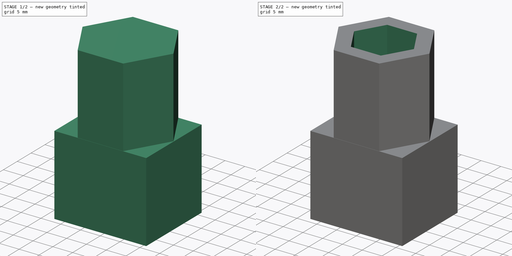
[diagram: build sequence overview — one tinted view per stage of 2, left to right]
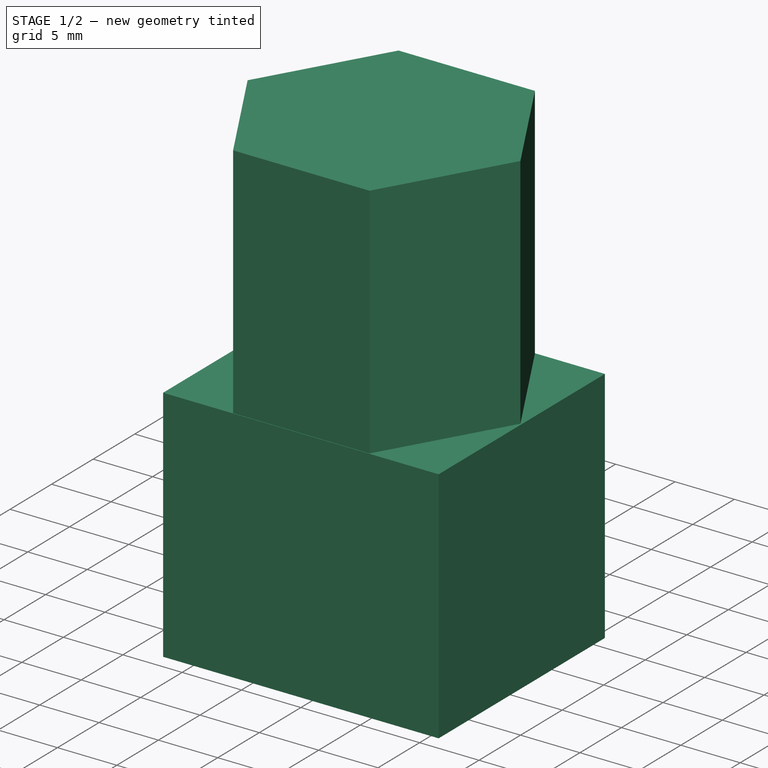
[diagram: stage 1 of 2 — iso view after this stage's code; geometry added in this stage tinted green]
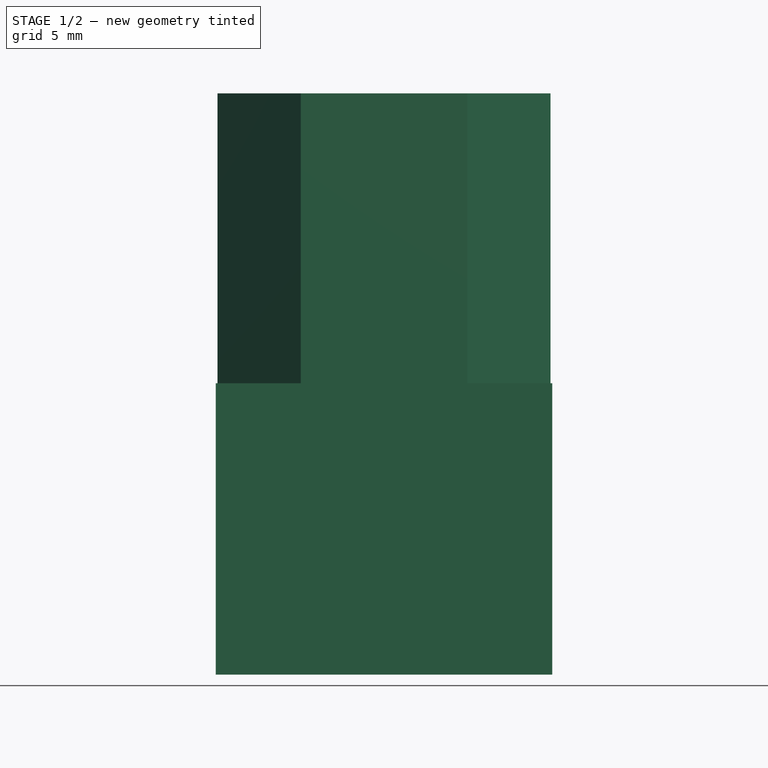
[diagram: stage 1 of 2 — front view after this stage's code; geometry added in this stage tinted green]
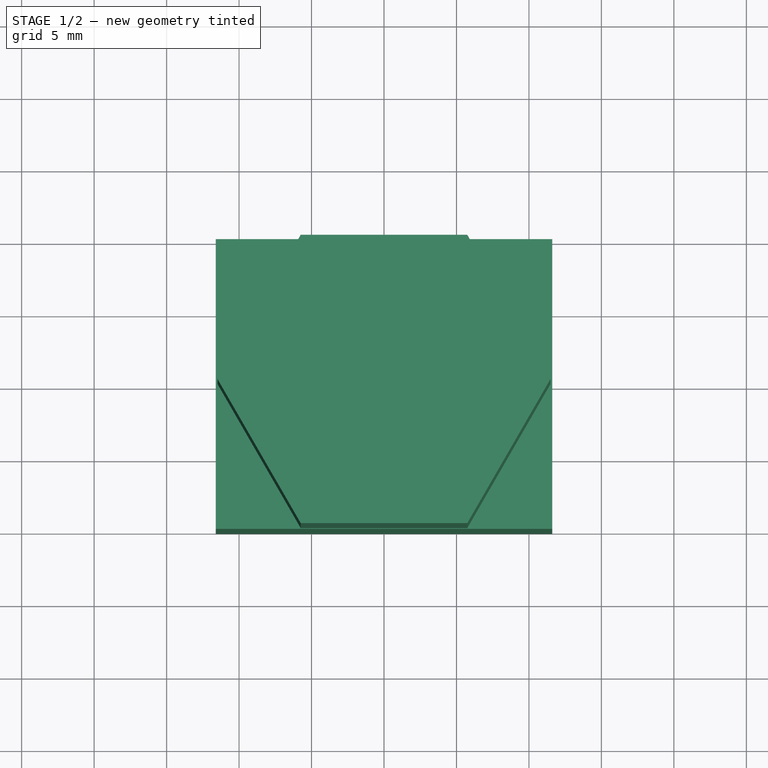
[diagram: stage 1 of 2 — top view after this stage's code; geometry added in this stage tinted green]
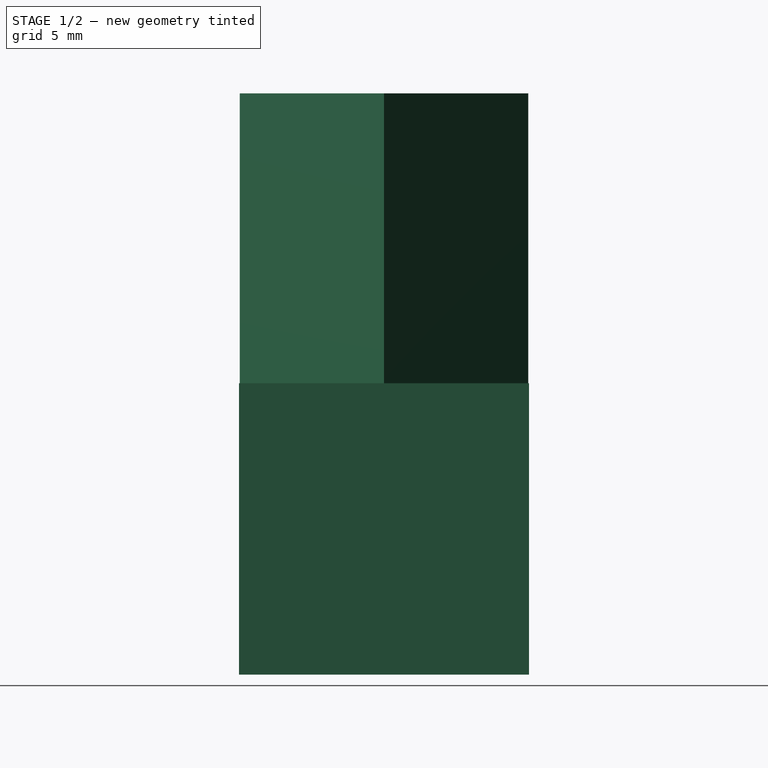
[diagram: stage 1 of 2 — right view after this stage's code; geometry added in this stage tinted green]
FCSTD DOCUMENT  (FreeCAD 1.1R38991 (Git))
Label: Ключ на 13
License: All rights reserved
LicenseURL: https://en.wikipedia.org/wiki/All_rights_reserved
objects: Sketcher::SketchObject×3, PartDesign::Pad×2, PartDesign::Plane×1, PartDesign::Pocket×1, PartDesign::Body×1
note: 17 computed .brp shape members not serialized (recipe doc carries the construction recipe); baked Part::Feature solids carry a one-line shape summary decoded from their .brp

FEATURE [Sketcher::SketchObject] Sketch
  ArcFitTolerance = 1e-06
  AttachmentSupport = -> [XZ_Plane001]
  FullyConstrained = true
  MakeInternals = false
  MapMode = 5
  Placement = pos=(0,0,0) rot=(1,0,0;1.5708rad)
  sketch-geometry (11):
    g0: LineSegment StartX=-11.6047 StartY=10.05 StartZ=0 EndX=-11.6047 EndY=-10.05 EndZ=0
    g1: LineSegment StartX=-11.6047 StartY=-10.05 StartZ=0 EndX=11.6047 EndY=-10.05 EndZ=0
    g2: LineSegment StartX=11.6047 StartY=-10.05 StartZ=0 EndX=11.6047 EndY=10.05 EndZ=0
    g3: LineSegment StartX=11.6047 StartY=10.05 StartZ=0 EndX=-11.6047 EndY=10.05 EndZ=0
    g4: LineSegment [constr] StartX=-5.80237 StartY=10.05 StartZ=0 EndX=-11.6047 EndY=1.8e-15 EndZ=0
    g5: LineSegment [constr] StartX=-11.6047 StartY=1.8e-15 StartZ=0 EndX=-5.80237 EndY=-10.05 EndZ=0
    g6: LineSegment [constr] StartX=-5.80237 StartY=-10.05 StartZ=0 EndX=5.80237 EndY=-10.05 EndZ=0
    g7: LineSegment [constr] StartX=5.80237 StartY=-10.05 StartZ=0 EndX=11.6047 EndY=0 EndZ=0
    g8: LineSegment [constr] StartX=11.6047 StartY=-6e-16 StartZ=0 EndX=5.80237 EndY=10.05 EndZ=0
    g9: LineSegment [constr] StartX=5.80237 StartY=10.05 StartZ=0 EndX=-5.80237 EndY=10.05 EndZ=0
    g10: Circle [constr] CenterX=0 CenterY=0 CenterZ=0 NormalX=0 NormalY=0 NormalZ=1 AngleXU=0 Radius=11.6047
  constraints (28):
    c: Coincident(g0,g1)
    c: Coincident(g1,g2)
    c: Coincident(g2,g3)
    c: Coincident(g3,g0)
    c: Vertical(g0)
    c: Vertical(g2)
    c: Horizontal(g1)
    c: Horizontal(g3)
    c: Coincident(g4,g5)
    c: Coincident(g5,g6)
    c: Coincident(g6,g7)
    c: Coincident(g7,g8)
    c: Coincident(g8,g9)
    c: Coincident(g9,g4)
    c: Equal(g4, g5-g9) x5
    c: PointOnObject(g4,g10)
    c: PointOnObject(g5,g10)
    c: PointOnObject(g6,g10)
    c: PointOnObject(g7,g10)
    c: PointOnObject(g8,g10)
    c: PointOnObject(g9,g10)
    c: Coincident(g10,g-1)
    c: PointOnObject(g9,g3)
    c: PointOnObject(g8,g3)
    c: PointOnObject(g4,g0)
    c: PointOnObject(g7,g2)
    c: PointOnObject(g6,g1)
    c: DistanceY(g5,g4) = 20.1
FEATURE [PartDesign::Pad] Pad
  Direction = (0,-1,2e-16)
  Length = 20
  Length2 = 10
  Placement = pos=(0,0,0) rot=(1,0,0;1.5708rad)
  Profile = -> Sketch
  ReferenceAxis = -> Sketch [N_Axis]
  Refine = true
  Suppressed = false
  Type = 0
FEATURE [PartDesign::Plane] DatumPlane
  AttachmentSupport = -> [Pad]
  Length = 60
  MapMode = 5
  Placement = pos=(0,2.2e-15,10.05) rot=(0,0,1;3.14159rad)
  ResizeMode = 0
  Width = 60
FEATURE [Sketcher::SketchObject] Sketch001
  ArcFitTolerance = 1e-06
  AttachmentSupport = -> [DatumPlane]
  ExternalGeometry = -> [Pad]
  FullyConstrained = true
  MakeInternals = false
  MapMode = 5
  Placement = pos=(0,2.2e-15,10.05) rot=(0,0,1;3.14159rad)
  sketch-geometry (7):
    g0: LineSegment StartX=-5.74464 StartY=19.95 StartZ=0 EndX=-11.4893 EndY=10 EndZ=0
    g1: LineSegment StartX=-11.4893 StartY=10 StartZ=0 EndX=-5.74464 EndY=0.05 EndZ=0
    g2: LineSegment StartX=-5.74464 StartY=0.05 StartZ=0 EndX=5.74464 EndY=0.05 EndZ=0
    g3: LineSegment StartX=5.74464 StartY=0.05 StartZ=0 EndX=11.4893 EndY=10 EndZ=0
    g4: LineSegment StartX=11.4893 StartY=10 StartZ=0 EndX=5.74464 EndY=19.95 EndZ=0
    g5: LineSegment StartX=5.74464 StartY=19.95 StartZ=0 EndX=-5.74464 EndY=19.95 EndZ=0
    g6: Circle [constr] CenterX=-7e-16 CenterY=10 CenterZ=0 NormalX=0 NormalY=0 NormalZ=1 AngleXU=0 Radius=11.4893
  constraints (16):
    c: Coincident(g0,g1)
    c: Coincident(g1,g2)
    c: Coincident(g2,g3)
    c: Coincident(g3,g4)
    c: Coincident(g4,g5)
    c: Coincident(g5,g0)
    c: Equal(g0, g1-g5) x5
    c: PointOnObject(g0,g6)
    c: PointOnObject(g1,g6)
    c: PointOnObject(g2,g6)
    c: PointOnObject(g3,g6)
    c: PointOnObject(g4,g6)
    c: PointOnObject(g5,g6)
    c: Horizontal(g5)
    c: Distance(g2,g5) = 19.9
    c: Symmetric(g-3,g-4,g6)
FEATURE [PartDesign::Pad] Pad001
  BaseFeature = -> Pad
  Direction = (0,0,1)
  Length = 20
  Length2 = 10
  Placement = pos=(0,0,0) rot=(1,0,0;1.5708rad)
  Profile = -> Sketch001
  ReferenceAxis = -> Sketch001 [N_Axis]
  Refine = true
  Suppressed = false
  Type = 0
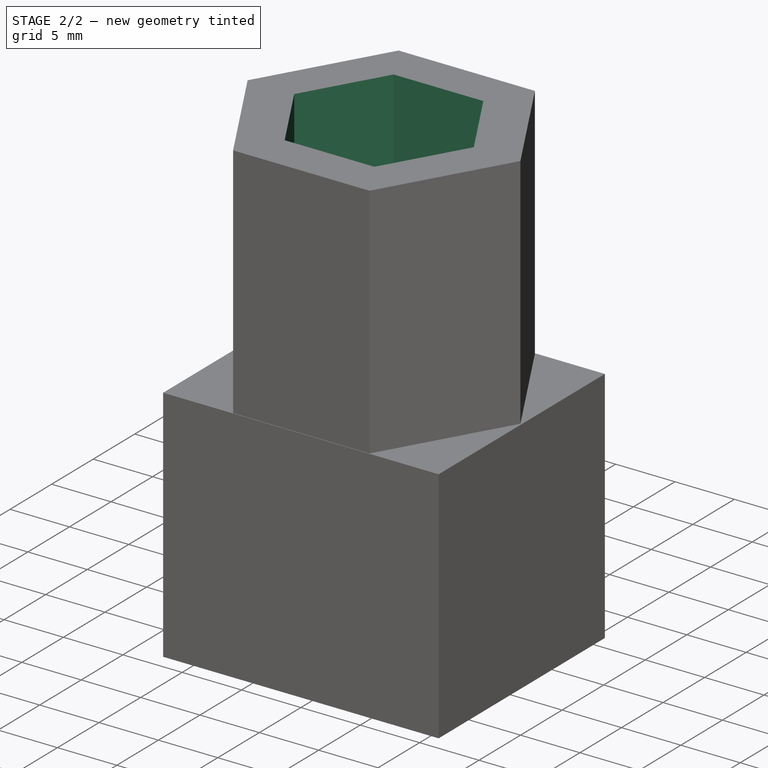
[diagram: stage 2 of 2 — iso view after this stage's code; geometry added in this stage tinted green]
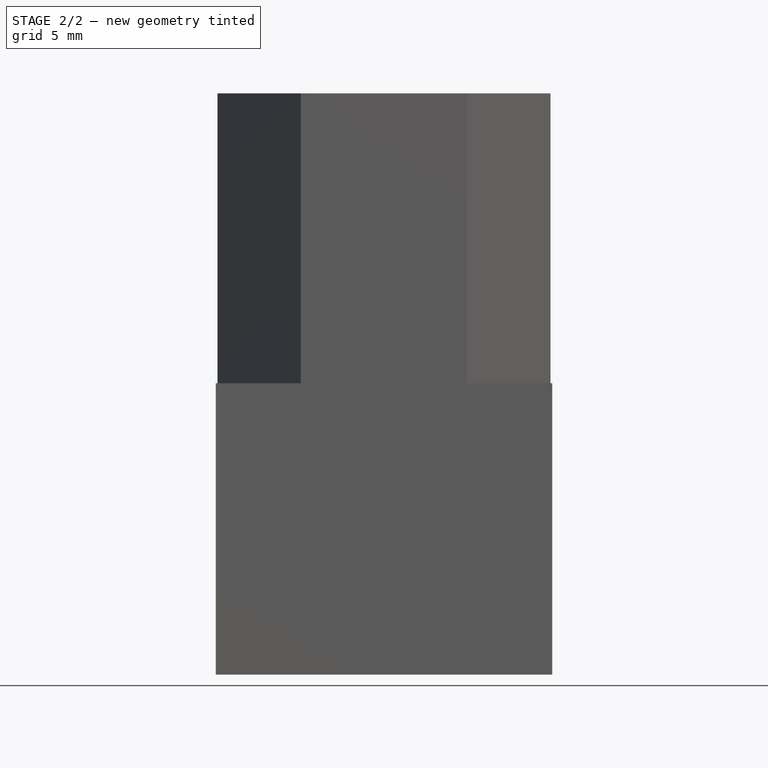
[diagram: stage 2 of 2 — front view after this stage's code; geometry added in this stage tinted green]
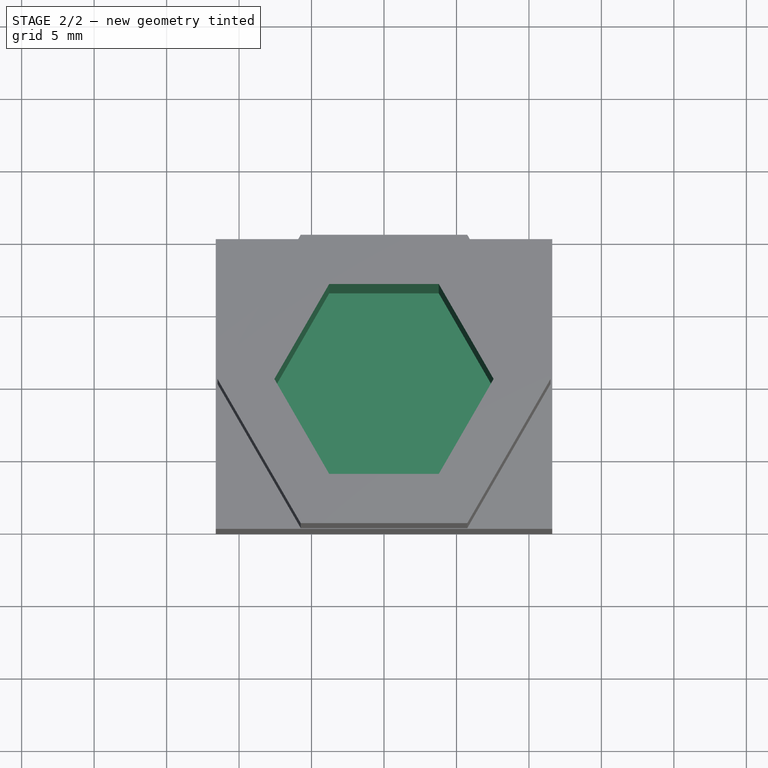
[diagram: stage 2 of 2 — top view after this stage's code; geometry added in this stage tinted green]
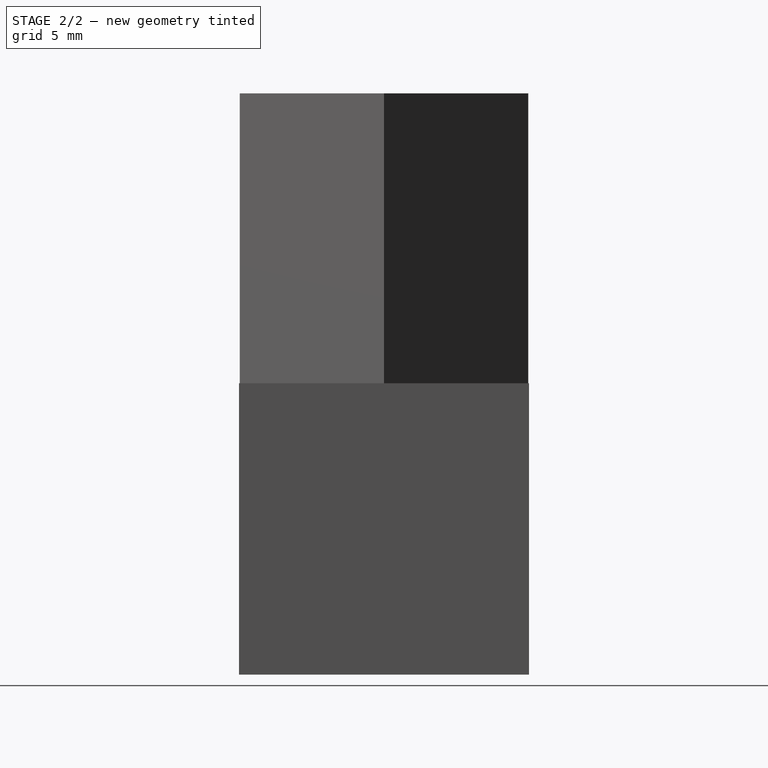
[diagram: stage 2 of 2 — right view after this stage's code; geometry added in this stage tinted green]
FEATURE [Sketcher::SketchObject] Sketch002
  ArcFitTolerance = 1e-06
  AttachmentSupport = -> [Pad001]
  ExternalGeometry = -> [Pad001]
  FullyConstrained = true
  MakeInternals = false
  MapMode = 5
  Placement = pos=(0,0,30.05) rot=(0,0,1;3.14159rad)
  sketch-geometry (7):
    g0: LineSegment StartX=3.78164 StartY=16.55 StartZ=0 EndX=-3.78164 EndY=16.55 EndZ=0
    g1: LineSegment StartX=-3.78164 StartY=16.55 StartZ=0 EndX=-7.56329 EndY=10 EndZ=0
    g2: LineSegment StartX=-7.56329 StartY=10 StartZ=0 EndX=-3.78164 EndY=3.45 EndZ=0
    g3: LineSegment StartX=-3.78164 StartY=3.45 StartZ=0 EndX=3.78164 EndY=3.45 EndZ=0
    g4: LineSegment StartX=3.78164 StartY=3.45 StartZ=0 EndX=7.56329 EndY=10 EndZ=0
    g5: LineSegment StartX=7.56329 StartY=10 StartZ=0 EndX=3.78164 EndY=16.55 EndZ=0
    g6: Circle [constr] CenterX=-6e-16 CenterY=10 CenterZ=0 NormalX=0 NormalY=0 NormalZ=1 AngleXU=0 Radius=7.56329
  constraints (16):
    c: Coincident(g0,g1)
    c: Coincident(g1,g2)
    c: Coincident(g2,g3)
    c: Coincident(g3,g4)
    c: Coincident(g4,g5)
    c: Coincident(g5,g0)
    c: Equal(g0, g1-g5) x5
    c: PointOnObject(g0,g6)
    c: PointOnObject(g1,g6)
    c: PointOnObject(g2,g6)
    c: PointOnObject(g3,g6)
    c: PointOnObject(g4,g6)
    c: PointOnObject(g5,g6)
    c: Symmetric(g-4,g-3,g6)
    c: Distance(g5,g2) = 13.1
    c: Horizontal(g0)
FEATURE [PartDesign::Pocket] Pocket
  BaseFeature = -> Pad001
  Direction = (0,0,-1)
  Length = 5
  Length2 = 5
  Offset = -3
  Placement = pos=(0,0,0) rot=(1,0,0;1.5708rad)
  Profile = -> Sketch002
  ReferenceAxis = -> Sketch002 [N_Axis]
  Refine = true
  Suppressed = false
  Type = 2
FEATURE [PartDesign::Body] Body001  label="Тело001"
  AllowCompound = false
  Group = -> [Sketch,Pad,DatumPlane,Sketch001,Pad001,Sketch002,Pocket]
  Origin = -> Origin001
  Tip = -> Pocket
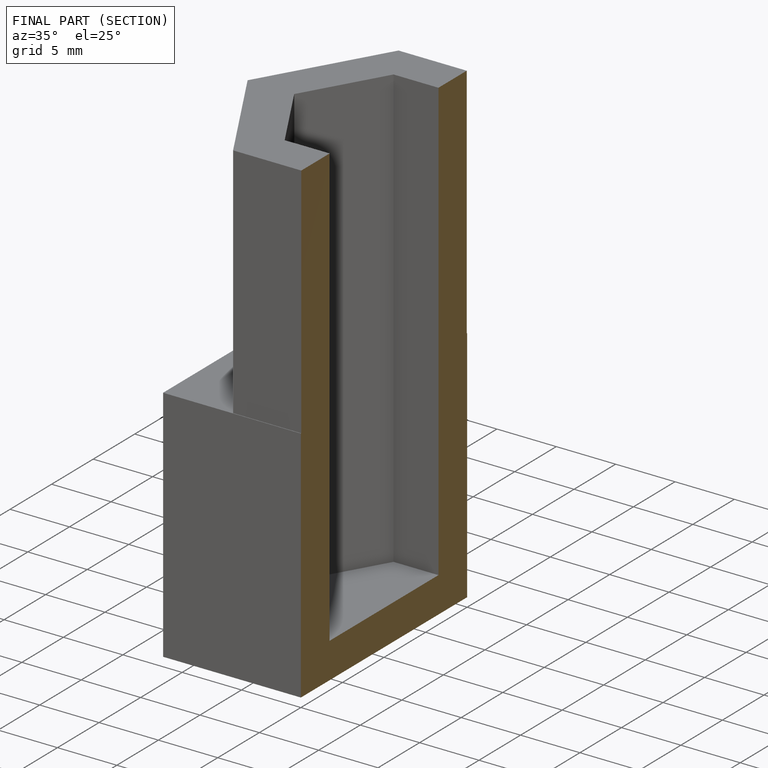
[diagram: finished part — half-section view (interior)]
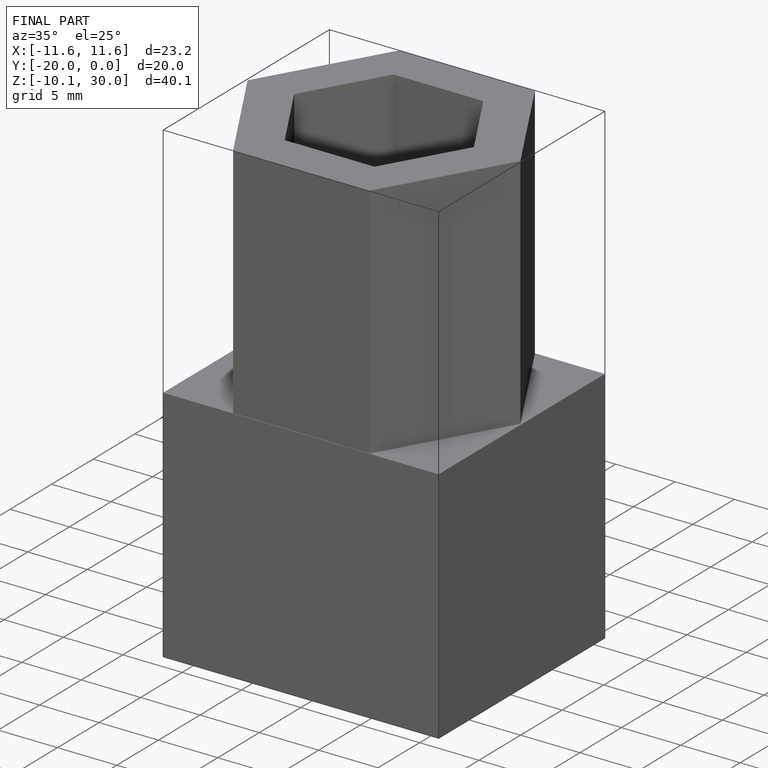
[diagram: finished part — iso view with bounding-box wireframe]
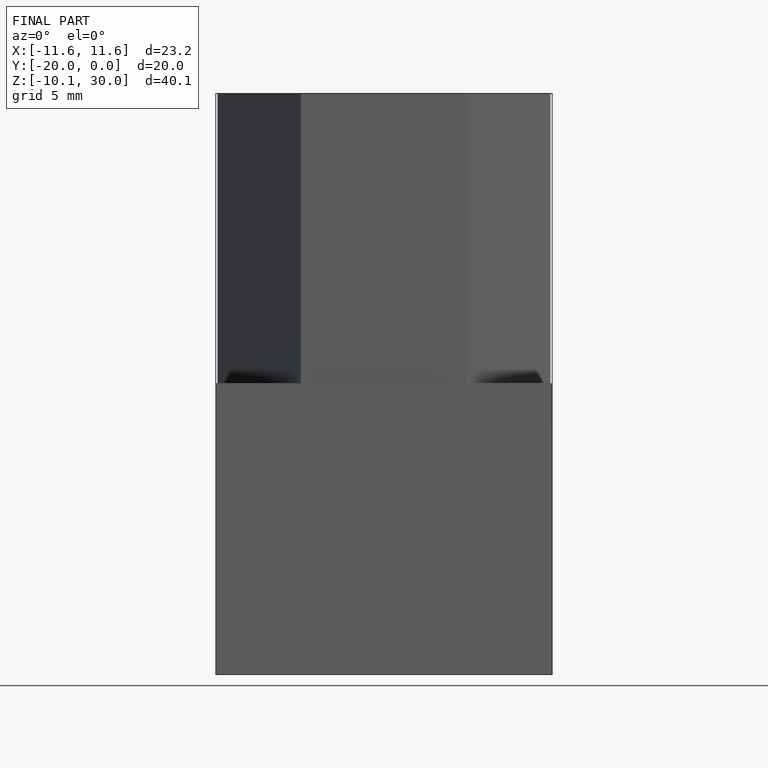
[diagram: finished part — front view with bounding-box wireframe]
